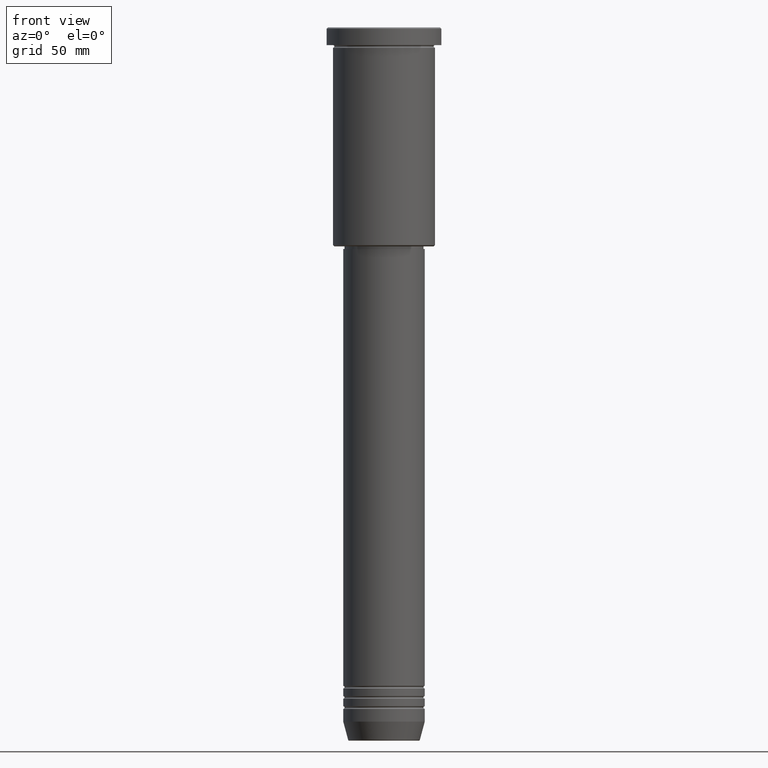
[diagram: clean part render]
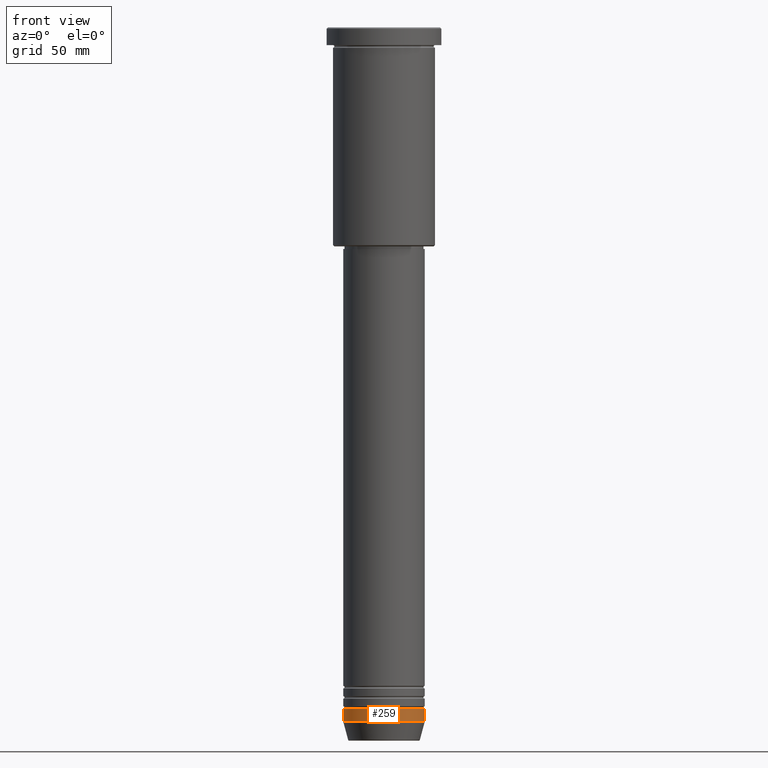
[diagram: same view with one face highlighted and labeled with its STEP entity id]
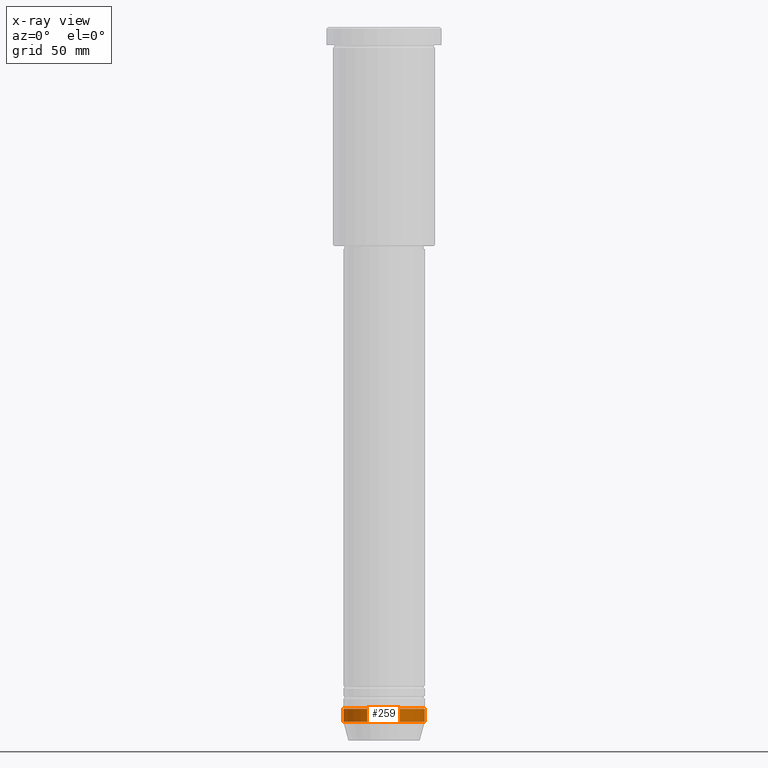
[diagram: x-ray of the same camera — body ghosted, the highlighted face saturated]
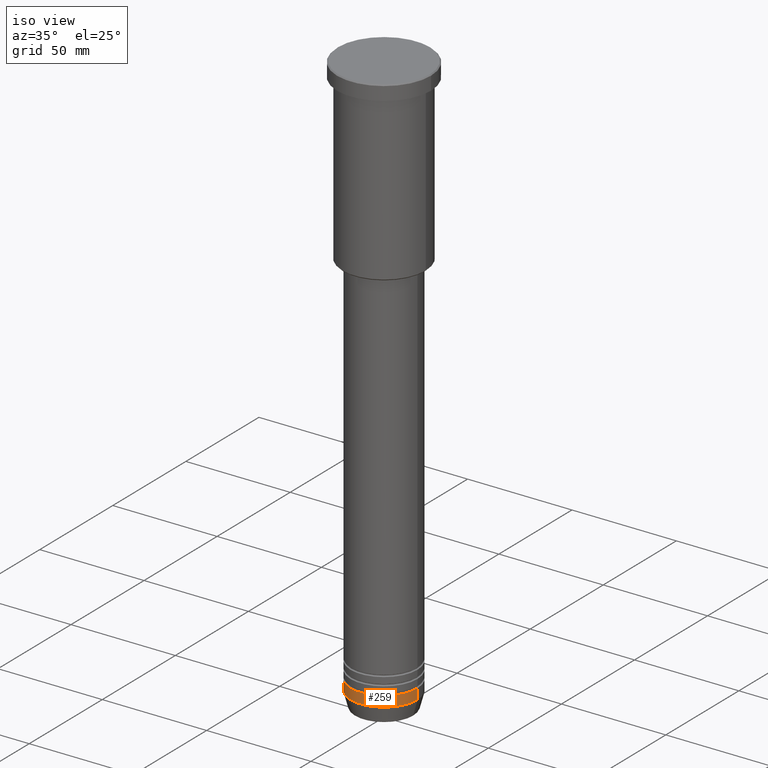
[diagram: same view with one face highlighted and labeled with its STEP entity id]
A machine part, front view. The second image highlights one B-rep face of the part: STEP entity #259.
The next image is the same camera in x-ray: the body ghosted, the highlighted face saturated — about 0% of this face is hidden behind the body in this view.
A second angle (iso view) of the same face is appended — the face is thin or edge-on in the first view.
In plain terms, the highlighted cylindrical surface (partial cylindrical patch) has radius 16 mm, axis along (-0, -0, 1).
Its self-contained STEP definition (entity closure, byte-faithful):
#5 = DIRECTION ( 'NONE',  ( -0.000000000000000000, -0.000000000000000000, 1.000000000000000000 ) ) ;
#14 = CARTESIAN_POINT ( 'NONE',  ( -16.00000000000000000, 1.959434878635765131E-15, -272.5000000000000000 ) ) ;
#26 = VERTEX_POINT ( 'NONE', #411 ) ;
#32 = EDGE_LOOP ( 'NONE', ( #887, #1120, #90, #499 ) ) ;
#37 = VECTOR ( 'NONE', #111, 1000.000000000000000 ) ;
#63 = CYLINDRICAL_SURFACE ( 'NONE', #858, 16.00000000000000000 ) ;
#64 = EDGE_CURVE ( 'NONE', #804, #26, #252, .T. ) ;
#65 = DIRECTION ( 'NONE',  ( 1.000000000000000000, 0.000000000000000000, 0.000000000000000000 ) ) ;
#90 = ORIENTED_EDGE ( 'NONE', *, *, #836, .T. ) ;
#111 = DIRECTION ( 'NONE',  ( -0.000000000000000000, -0.000000000000000000, 1.000000000000000000 ) ) ;
#156 = CARTESIAN_POINT ( 'NONE',  ( 0.000000000000000000, 0.000000000000000000, 0.000000000000000000 ) ) ;
#163 = DIRECTION ( 'NONE',  ( -0.000000000000000000, -0.000000000000000000, 1.000000000000000000 ) ) ;
#189 = LINE ( 'NONE', #210, #37 ) ;
#204 = CARTESIAN_POINT ( 'NONE',  ( -16.00000000000000000, 1.959434878635765131E-15, -267.5000000000000000 ) ) ;
#210 = CARTESIAN_POINT ( 'NONE',  ( 16.00000000000000000, 0.000000000000000000, 0.000000000000000000 ) ) ;
#252 = CIRCLE ( 'NONE', #638, 16.00000000000000000 ) ;
#259 = ADVANCED_FACE ( 'NONE', ( #881 ), #63, .T. ) ;
#365 = CIRCLE ( 'NONE', #1183, 16.00000000000000000 ) ;
#373 = CARTESIAN_POINT ( 'NONE',  ( 16.00000000000000000, 0.000000000000000000, -272.5000000000000000 ) ) ;
#389 = VECTOR ( 'NONE', #163, 1000.000000000000000 ) ;
#411 = CARTESIAN_POINT ( 'NONE',  ( 16.00000000000000000, 0.000000000000000000, -267.5000000000000000 ) ) ;
#438 = VERTEX_POINT ( 'NONE', #373 ) ;
#499 = ORIENTED_EDGE ( 'NONE', *, *, #64, .F. ) ;
#530 = DIRECTION ( 'NONE',  ( -0.000000000000000000, -0.000000000000000000, 1.000000000000000000 ) ) ;
#539 = DIRECTION ( 'NONE',  ( 1.000000000000000000, 0.000000000000000000, 0.000000000000000000 ) ) ;
#625 = DIRECTION ( 'NONE',  ( -0.000000000000000000, -0.000000000000000000, 1.000000000000000000 ) ) ;
#638 = AXIS2_PLACEMENT_3D ( 'NONE', #764, #5, #65 ) ;
#662 = EDGE_CURVE ( 'NONE', #742, #438, #365, .T. ) ;
#712 = CARTESIAN_POINT ( 'NONE',  ( -16.00000000000000000, 1.959434878635765131E-15, 0.000000000000000000 ) ) ;
#742 = VERTEX_POINT ( 'NONE', #14 ) ;
#764 = CARTESIAN_POINT ( 'NONE',  ( 0.000000000000000000, 0.000000000000000000, -267.5000000000000000 ) ) ;
#804 = VERTEX_POINT ( 'NONE', #204 ) ;
#836 = EDGE_CURVE ( 'NONE', #438, #26, #189, .T. ) ;
#858 = AXIS2_PLACEMENT_3D ( 'NONE', #156, #530, #888 ) ;
#881 = FACE_OUTER_BOUND ( 'NONE', #32, .T. ) ;
#887 = ORIENTED_EDGE ( 'NONE', *, *, #1086, .F. ) ;
#888 = DIRECTION ( 'NONE',  ( 1.000000000000000000, 0.000000000000000000, 0.000000000000000000 ) ) ;
#893 = LINE ( 'NONE', #712, #389 ) ;
#980 = CARTESIAN_POINT ( 'NONE',  ( 0.000000000000000000, 0.000000000000000000, -272.5000000000000000 ) ) ;
#1086 = EDGE_CURVE ( 'NONE', #742, #804, #893, .T. ) ;
#1120 = ORIENTED_EDGE ( 'NONE', *, *, #662, .T. ) ;
#1183 = AXIS2_PLACEMENT_3D ( 'NONE', #980, #625, #539 ) ;